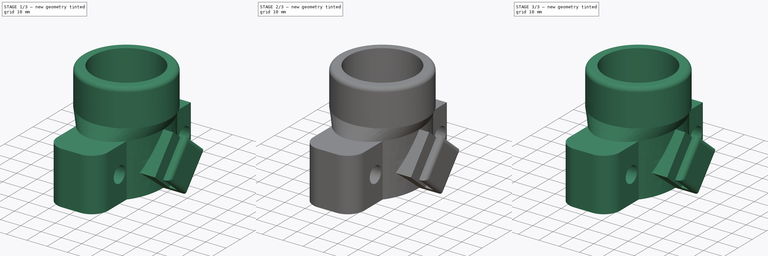
[diagram: build sequence overview — one tinted view per stage of 3, left to right]
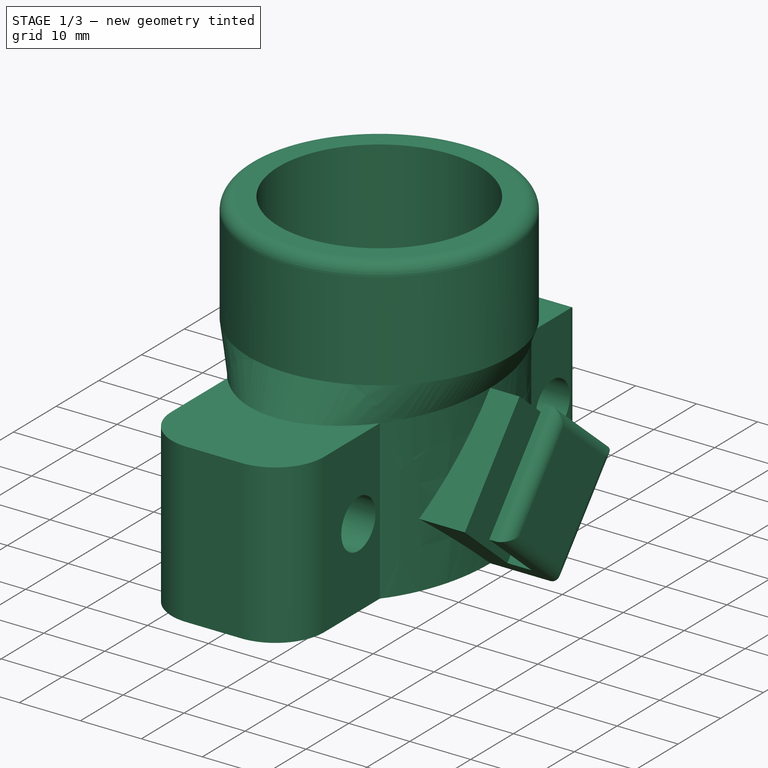
[diagram: stage 1 of 3 — iso view after this stage's code; geometry added in this stage tinted green]
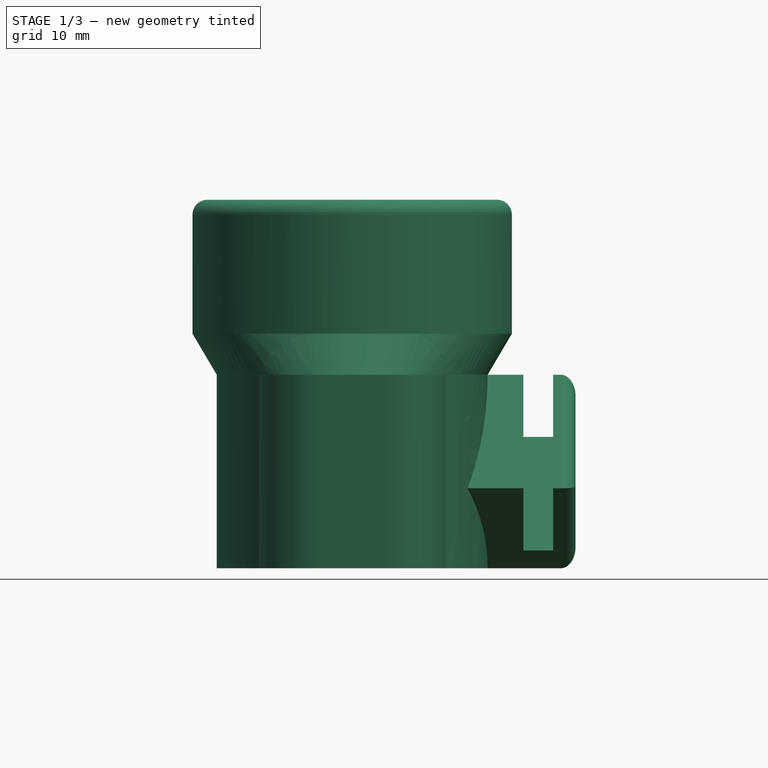
[diagram: stage 1 of 3 — front view after this stage's code; geometry added in this stage tinted green]
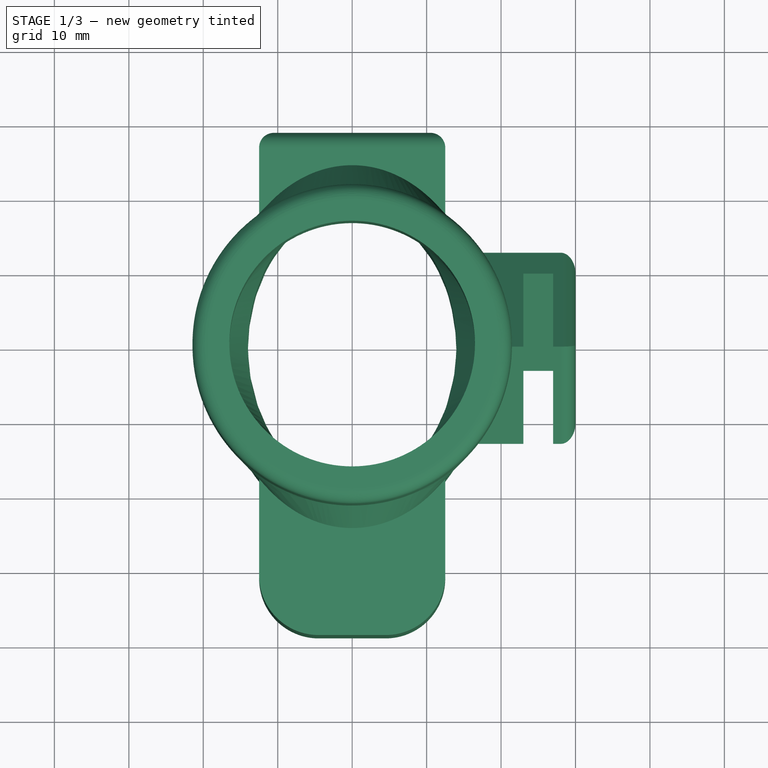
[diagram: stage 1 of 3 — top view after this stage's code; geometry added in this stage tinted green]
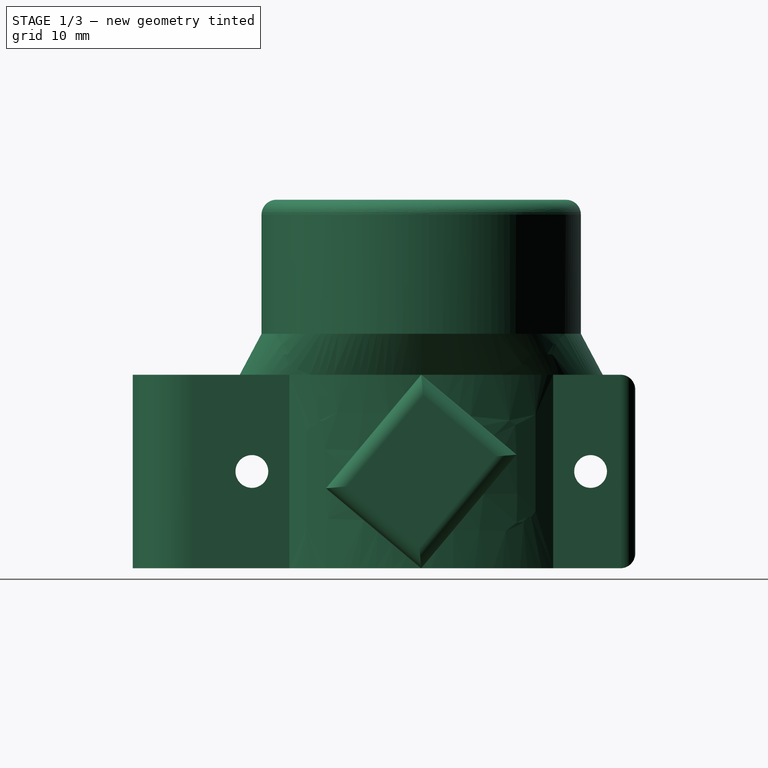
[diagram: stage 1 of 3 — right view after this stage's code; geometry added in this stage tinted green]
FCSTD DOCUMENT  (FreeCAD 0.18R16110 (Git))
Label: StrollerBagHolder
License: All rights reserved
LicenseURL: http://en.wikipedia.org/wiki/All_rights_reserved
objects: Sketcher::SketchObject×8, PartDesign::Pad×8, Part::FeaturePython×4, PartDesign::Plane×3, PartDesign::Body×3, PartDesign::FeatureBase×2, PartDesign::Pocket×2, PartDesign::Fillet×2, Spreadsheet::Sheet×1, PartDesign::AdditiveLoft×1, Part::Cut×1, PartDesign::Hole×1, App::DocumentObjectGroup×1
note: 47 computed .brp shape members not serialized (recipe doc carries the construction recipe); baked Part::Feature solids carry a one-line shape summary decoded from their .brp

FEATURE [Sketcher::SketchObject] Sketch
  MapMode = 5
  Support = -> [XY_Plane]
  expr: Constraints[7] = Spreadsheet.barWidth
  expr: Constraints[6] = Spreadsheet.barHeight
  sketch-geometry (5):
    g0: Ellipse CenterX=0 CenterY=0 CenterZ=0 NormalX=0 NormalY=0 NormalZ=1 MajorRadius=18.75 MinorRadius=14 AngleXU=-1.5708
    g1: LineSegment [constr] StartX=0 StartY=-18.75 StartZ=0 EndX=0 EndY=18.75 EndZ=0
    g2: LineSegment [constr] StartX=14 StartY=0 StartZ=0 EndX=-14 EndY=0 EndZ=0
    g3: GeomPoint X=0 Y=-12.4725 Z=0
    g4: GeomPoint X=0 Y=12.4725 Z=0
  constraints (5):
    c: InternalAlignment(g1-g4 -> g0) x4
    c: PointOnObject(g1,g-2)
    c: Coincident(g0,g-1)
    c: DistanceY(g1,g1) = 37.5
    c: DistanceX(g2,g2) = 28
FEATURE [Spreadsheet::Sheet] Spreadsheet
  cells = A1=Bar; A2=barHeight; B2(barHeight)=37.5; A3=barWidth; B3(barWidth)=28; A4=barDiam; B4(barDiam)=33; A5=barOvalLength; B5(barOvalLength)=26; A6=barLength; B6(barLength)=49.5; A7=barCirLength; B7(barCirLength)=18; A8=barScrewWidth; B8(barScrewWidth)=28.3; A9=barScrewDiam; B9(barScrewDiam)=10; A10=barMidLength; B10(barMidLength)==barLength - barCirLength - barOvalLength; A12=notchWidth; B12(notchWidth)=25; A13=notchHeight; B13(notchHeight)==barHeight + 2 * 10
FEATURE [PartDesign::Plane] DatumPlane
  AttachmentOffset = pos=(0,0,5.5) rot=(0,0,1;0rad)
  Length = 39.9735
  MapMode = 5
  Placement = pos=(0,0,5.5) rot=(0,0,1;0rad)
  ResizeMode = 0
  Support = -> [XY_Plane]
  Width = 44.4621
  expr: AttachmentOffset.Base.z = Spreadsheet.barMidLength
FEATURE [Sketcher::SketchObject] Sketch001
  MapMode = 5
  Placement = pos=(0,0,5.5) rot=(0,0,1;0rad)
  Support = -> [DatumPlane]
  expr: Constraints[1] = Spreadsheet.barDiam
  sketch-geometry (1):
    g0: Circle CenterX=0 CenterY=0 CenterZ=0 NormalX=0 NormalY=0 NormalZ=1 AngleXU=0 Radius=16.5
  constraints (2):
    c: Coincident(g0,g-1)
    c: Diameter(g0) = 33
FEATURE [PartDesign::AdditiveLoft] AdditiveLoft
  Closed = false
  Profile = -> Sketch
  Ruled = false
  Sections = -> [Sketch001]
FEATURE [PartDesign::Pad] Pad
  BaseFeature = -> AdditiveLoft
  Length = 26
  Length2 = 100
  Profile = -> AdditiveLoft [Face1]
  Type = 0
  expr: Length = Spreadsheet.barOvalLength
FEATURE [PartDesign::Pad] Pad001
  BaseFeature = -> Pad
  Length = 18
  Length2 = 100
  Profile = -> Pad [Face4]
  Type = 0
  expr: Length = Spreadsheet.barCirLength
FEATURE [Part::FeaturePython] Scale  # Draft clone (typed FeaturePython)
  Fuse = false
  Objects = -> [Pad001]
  Scale = (1.3,1.3,1)
FEATURE [PartDesign::FeatureBase] BaseFeature
  BaseFeature = -> Scale
FEATURE [Sketcher::SketchObject] Sketch002
  MapMode = 5
  Support = -> [XY_Plane002]
  expr: Constraints[8] = Spreadsheet.notchHeight
  expr: Constraints[7] = Spreadsheet.notchWidth
  sketch-geometry (4):
    g0: LineSegment StartX=-12.5 StartY=28.75 StartZ=0 EndX=12.5 EndY=28.75 EndZ=0
    g1: LineSegment StartX=12.5 StartY=28.75 StartZ=0 EndX=12.5 EndY=-28.75 EndZ=0
    g2: LineSegment StartX=12.5 StartY=-28.75 StartZ=0 EndX=-12.5 EndY=-28.75 EndZ=0
    g3: LineSegment StartX=-12.5 StartY=-28.75 StartZ=0 EndX=-12.5 EndY=28.75 EndZ=0
  constraints (11):
    c: Coincident(g0,g1)
    c: Coincident(g1,g2)
    c: Coincident(g2,g3)
    c: Coincident(g3,g0)
    c: Horizontal(g2)
    c: Vertical(g1)
    c: Vertical(g3)
    c: DistanceX(g0,g0) = 25
    c: DistanceY(g3,g3) = 57.5
    c: Horizontal(g0)
    c: Symmetric(g2,g0,g-1)
FEATURE [PartDesign::Pad] Pad002
  BaseFeature = -> BaseFeature
  Length = 26
  Length2 = 100
  Profile = -> Sketch002
  Reversed = true
  Type = 0
  expr: Length = Spreadsheet.barOvalLength
FEATURE [PartDesign::Pad] Pad003
  BaseFeature = -> Pad001
  Length = 10
  Length2 = 100
  Profile = -> Pad001 [Face8]
  Type = 0
FEATURE [PartDesign::Pad] Pad004
  BaseFeature = -> Pad003
  Length = 10
  Length2 = 100
  Profile = -> Pad003 [Face6]
  Type = 0
FEATURE [Sketcher::SketchObject] Sketch005
  MapMode = 5
  Placement = pos=(0,0,0) rot=(0.57735,0.57735,0.57735;2.0944rad)
  Support = -> [YZ_Plane]
  expr: Constraints[2] = Spreadsheet.barOvalLength - 15
  sketch-geometry (1):
    g0: Circle CenterX=0 CenterY=-11 CenterZ=0 NormalX=0 NormalY=0 NormalZ=1 AngleXU=0 Radius=5
  constraints (3):
    c: PointOnObject(g0,g-2)
    c: Diameter(g0) = 10
    c: DistanceY(g0,g-1) = 11
FEATURE [PartDesign::Pad] Pad005
  BaseFeature = -> Pad004
  Length = 30
  Length2 = 100
  Midplane = true
  Profile = -> Sketch005
  Type = 0
  expr: Length = Spreadsheet.barWidth + 2
FEATURE [PartDesign::Body] Body  label="strollerHandle"
  Group = -> [Sketch,DatumPlane,Sketch001,AdditiveLoft,Pad,Pad001,Pad003,Pad004,Sketch005,Pad005]
  Origin = -> Origin
  Tip = -> Pad005
FEATURE [PartDesign::Plane] DatumPlane001
  Length = 24
  MapMode = 5
  Placement = pos=(0,0,0) rot=(0.57735,0.57735,0.57735;2.0944rad)
  ResizeMode = 0
  Support = -> [YZ_Plane003]
  Width = 24
FEATURE [PartDesign::Plane] DatumPlane003
  Length = 68.1701
  MapMode = 5
  Placement = pos=(0,0,0) rot=(0.57735,0.57735,0.57735;2.0944rad)
  ResizeMode = 0
  Support = -> [YZ_Plane002]
  Width = 60.1701
FEATURE [Sketcher::SketchObject] Sketch008
  MapMode = 5
  Placement = pos=(0,0,0) rot=(0.57735,0.57735,0.57735;2.0944rad)
  expr: Constraints[10] = Spreadsheet.barOvalLength
  sketch-geometry (4):
    g0: LineSegment StartX=-12.8025 StartY=-15.2574 StartZ=0 EndX=-1.8e-15 EndY=0 EndZ=0
    g1: LineSegment StartX=-1.8e-15 StartY=0 StartZ=0 EndX=12.8025 EndY=-10.7426 EndZ=0
    g2: LineSegment StartX=12.8025 StartY=-10.7426 StartZ=0 EndX=0 EndY=-26 EndZ=0
    g3: LineSegment StartX=0 StartY=-26 StartZ=0 EndX=-12.8025 EndY=-15.2574 EndZ=0
  constraints (11):
    c: Coincident(g1,g0)
    c: Coincident(g1,g2)
    c: Coincident(g2,g3)
    c: Coincident(g3,g0)
    c: Perpendicular(g0,g3)
    c: Perpendicular(g1,g2)
    c: Perpendicular(g1,g0)
    c: Angle(g0,g-2) = 0.698132
    c: Coincident(g0,g-1)
    c: PointOnObject(g2,g-2)
    c: DistanceY(g2,g0) = 26
FEATURE [PartDesign::Pad] Pad007
  BaseFeature = -> Pad002
  Length = 30
  Length2 = 100
  Profile = -> Sketch008
  Type = 0
FEATURE [Sketcher::SketchObject] Sketch009
  MapMode = 5
  Placement = pos=(0,-1.4e-15,1.1e-15) rot=(1,0,0;0.872665rad)
  Support = -> [Pad007]
  sketch-geometry (4):
    g0: LineSegment StartX=23 StartY=0 StartZ=0 EndX=27 EndY=0 EndZ=0
    g1: LineSegment StartX=27 StartY=0 StartZ=0 EndX=27 EndY=-20 EndZ=0
    g2: LineSegment StartX=27 StartY=-20 StartZ=0 EndX=23 EndY=-20 EndZ=0
    g3: LineSegment StartX=23 StartY=-20 StartZ=0 EndX=23 EndY=0 EndZ=0
  constraints (12):
    c: Coincident(g0,g1)
    c: Coincident(g1,g2)
    c: Coincident(g2,g3)
    c: Coincident(g3,g0)
    c: Horizontal(g0)
    c: Horizontal(g2)
    c: Vertical(g1)
    c: Vertical(g3)
    c: PointOnObject(g0,g-1)
    c: DistanceX(g-1,g0) = 23
    c: DistanceX(g0,g0) = 4
    c: DistanceY(g1,g1) = 20
FEATURE [PartDesign::Pocket] Pocket001
  BaseFeature = -> Pad007
  Length = 13
  Length2 = 100
  Profile = -> Sketch009
  Type = 0
FEATURE [PartDesign::Body] Body001
  BaseFeature = -> Scale
  Group = -> [BaseFeature,Sketch002,Pad002,DatumPlane003,Sketch008,Pad007,Sketch009,Pocket001]
  Origin = -> Origin002
  Tip = -> Pocket001
FEATURE [Part::Cut] Cut
  Base = -> Body001
  Tool = -> Body
FEATURE [PartDesign::FeatureBase] BaseFeature001
  BaseFeature = -> Cut
FEATURE [PartDesign::Body] Body002
  BaseFeature = -> Cut
  Group = -> [BaseFeature001,Sketch003,Hole,Sketch004,Pocket,DatumPlane001,Pad006,Fillet,Fillet001]
  Origin = -> Origin003
  Tip = -> Fillet001
FEATURE [Sketcher::SketchObject] Sketch003
  MapMode = 5
  Placement = pos=(12.5,0,0) rot=(0.57735,0.57735,0.57735;2.0944rad)
  Support = -> [Pad006]
  expr: Constraints.holeDist = Spreadsheet.notchHeight / 2 - 6
  expr: Constraints[0] = Spreadsheet.barOvalLength / 2
  sketch-geometry (2):
    g0: Circle CenterX=-22.75 CenterY=-13 CenterZ=0 NormalX=0 NormalY=0 NormalZ=1 AngleXU=0 Radius=1.5
    g1: Circle CenterX=22.75 CenterY=-13 CenterZ=0 NormalX=0 NormalY=0 NormalZ=1 AngleXU=0 Radius=1.5
  constraints (5):
    c: DistanceY(g0,g-1) = 13
    c: Symmetric(g1,g0,g-2)
    c: DistanceX(g0,g-1) = 22.75  'holeDist'
    c: Equal(g0,g1)
    c: Diameter(g0) = 3
FEATURE [PartDesign::Hole] Hole
  BaseFeature = -> BaseFeature001
  Depth = 25
  DepthType = 1
  Diameter = 4.4
  DrillPoint = 0
  DrillPointAngle = 118
  HoleCutCountersinkAngle = 90
  HoleCutDepth = 5
  HoleCutDiameter = 8
  HoleCutType = 1
  ModelActualThread = false
  Profile = -> Sketch003
  Tapered = false
  TaperedAngle = 90
  ThreadAngle = 60
  ThreadClass = 0
  ThreadCutOffInner = 0.0757772
  ThreadCutOffOuter = 0.151554
  ThreadDirection = 0
  ThreadFit = 0
  ThreadPitch = 0.7
  ThreadSize = 0
  ThreadType = 0
  Threaded = false
  expr: Depth = Spreadsheet.notchWidth
FEATURE [Sketcher::SketchObject] Sketch004
  MapMode = 5
  Placement = pos=(-12.5,0,0) rot=(0.57735,-0.57735,-0.57735;2.0944rad)
  Support = -> [Hole]
  expr: Constraints[35] = Spreadsheet.notchHeight / 2 - 6
  expr: Constraints[37] = Spreadsheet.barOvalLength / 2
  sketch-geometry (14):
    g0: LineSegment StartX=-22.75 StartY=-17.1569 StartZ=0 EndX=-19.15 EndY=-15.0785 EndZ=0
    g1: LineSegment StartX=-19.15 StartY=-15.0785 StartZ=0 EndX=-19.15 EndY=-10.9215 EndZ=0
    g2: LineSegment StartX=-19.15 StartY=-10.9215 StartZ=0 EndX=-22.75 EndY=-8.84308 EndZ=0
    g3: LineSegment StartX=-22.75 StartY=-8.84308 StartZ=0 EndX=-26.35 EndY=-10.9215 EndZ=0
    g4: LineSegment StartX=-26.35 StartY=-10.9215 StartZ=0 EndX=-26.35 EndY=-15.0785 EndZ=0
    g5: LineSegment StartX=-26.35 StartY=-15.0785 StartZ=0 EndX=-22.75 EndY=-17.1569 EndZ=0
    g6: Circle [constr] CenterX=-22.75 CenterY=-13 CenterZ=0 NormalX=0 NormalY=0 NormalZ=1 AngleXU=0 Radius=4.15692
    g7: LineSegment StartX=26.35 StartY=-15.0785 StartZ=0 EndX=26.35 EndY=-10.9215 EndZ=0
    g8: LineSegment StartX=26.35 StartY=-10.9215 StartZ=0 EndX=22.75 EndY=-8.84308 EndZ=0
    g9: LineSegment StartX=22.75 StartY=-8.84308 StartZ=0 EndX=19.15 EndY=-10.9215 EndZ=0
    g10: LineSegment StartX=19.15 StartY=-10.9215 StartZ=0 EndX=19.15 EndY=-15.0785 EndZ=0
    g11: LineSegment StartX=19.15 StartY=-15.0785 StartZ=0 EndX=22.75 EndY=-17.1569 EndZ=0
    g12: LineSegment StartX=22.75 StartY=-17.1569 StartZ=0 EndX=26.35 EndY=-15.0785 EndZ=0
    g13: Circle [constr] CenterX=22.75 CenterY=-13 CenterZ=0 NormalX=0 NormalY=0 NormalZ=1 AngleXU=0 Radius=4.15692
  constraints (33):
    c: Coincident(g0,g1)
    c: Coincident(g1,g2)
    c: Coincident(g2,g3)
    c: Coincident(g3,g4)
    c: Coincident(g4,g5)
    c: Coincident(g5,g0)
    c: Equal(g0, g1-g5) x5
    c: PointOnObject(g0,g6)
    c: PointOnObject(g1,g6)
    c: PointOnObject(g2,g6)
    c: PointOnObject(g3,g6)
    c: PointOnObject(g4,g6)
    c: PointOnObject(g5,g6)
    c: Coincident(g7,g8)
    c: Coincident(g8,g9)
    c: Coincident(g9,g10)
    c: Coincident(g10,g11)
    c: Coincident(g11,g12)
    c: Coincident(g12,g7)
    c: Equal(g7, g8-g12) x5
    c: PointOnObject(g7,g13)
    c: PointOnObject(g8,g13)
    c: PointOnObject(g9,g13)
    c: PointOnObject(g10,g13)
    c: PointOnObject(g11,g13)
    c: PointOnObject(g12,g13)
    c: Equal(g13,g6)
    c: DistanceX(g6,g-1) = 22.75
    c: Symmetric(g6,g13,g-2)
    c: DistanceY(g6,g-1) = 13
    c: Vertical(g2,g0)
    c: Vertical(g8,g11)
    c: DistanceX(g3,g1) = 7.2
FEATURE [PartDesign::Pocket] Pocket
  BaseFeature = -> Hole
  Length = 5
  Length2 = 100
  Profile = -> Sketch004
  Type = 0
FEATURE [PartDesign::Pad] Pad006
  BaseFeature = -> Pocket
  Length = 10
  Length2 = 100
  Profile = -> Pocket [Face7]
  Type = 0
FEATURE [PartDesign::Fillet] Fillet
  Base = -> Pad006 [Edge61,Edge78]
  BaseFeature = -> Pad006
  Radius = 8
FEATURE [PartDesign::Fillet] Fillet001
  Base = -> Fillet [Edge65,Face45,Face40]
  BaseFeature = -> Fillet
  Radius = 2
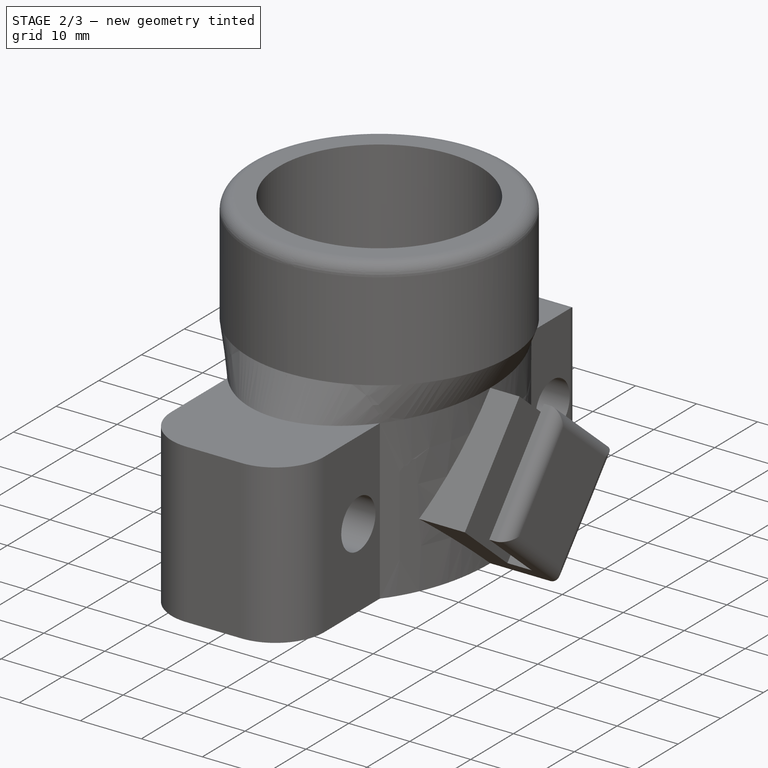
[diagram: stage 2 of 3 — iso view after this stage's code; geometry added in this stage tinted green]
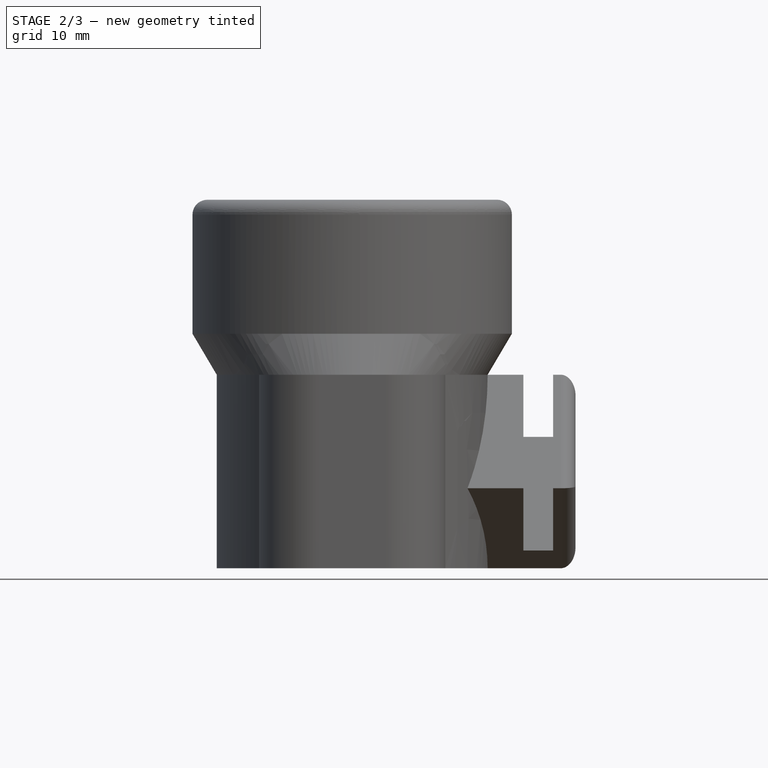
[diagram: stage 2 of 3 — front view after this stage's code; geometry added in this stage tinted green]
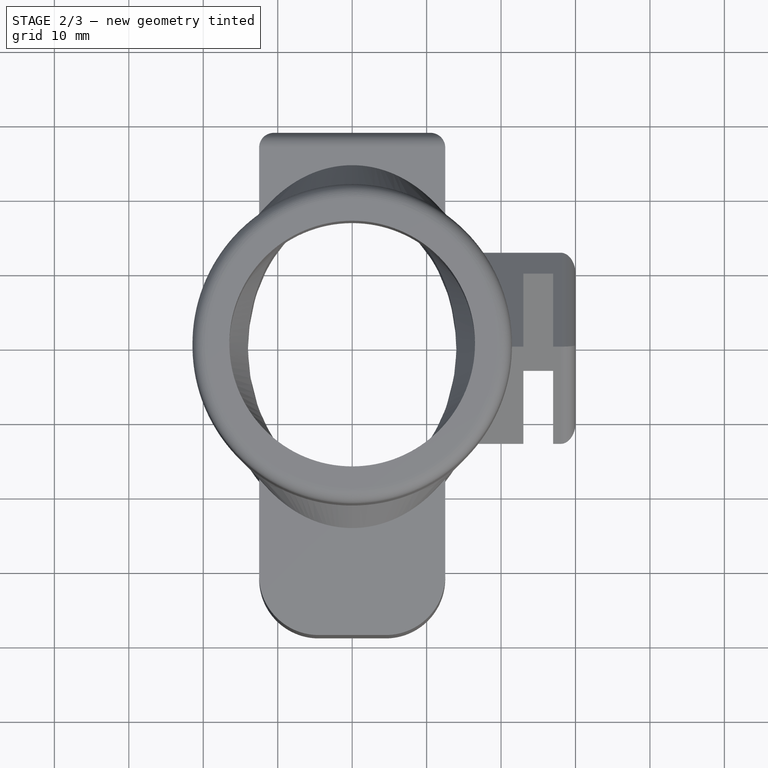
[diagram: stage 2 of 3 — top view after this stage's code; geometry added in this stage tinted green]
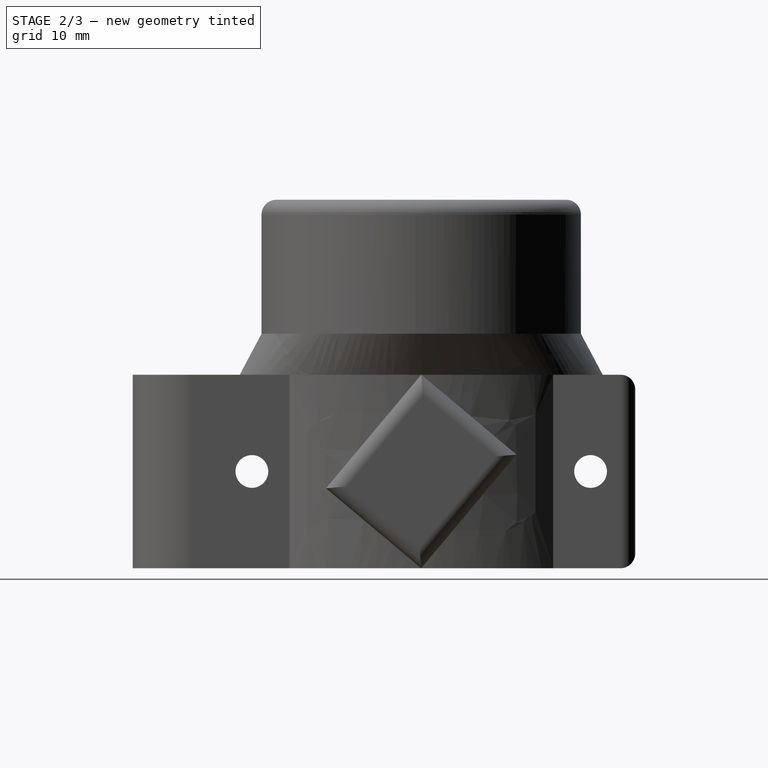
[diagram: stage 2 of 3 — right view after this stage's code; geometry added in this stage tinted green]
FEATURE [Part::FeaturePython] Slice  # WARN: FeaturePython — macro-defined, semantics opaque (R4)
  Base = -> Body002
  Mode = 1
  Tolerance = 0
  Tools = -> [DatumPlane001]
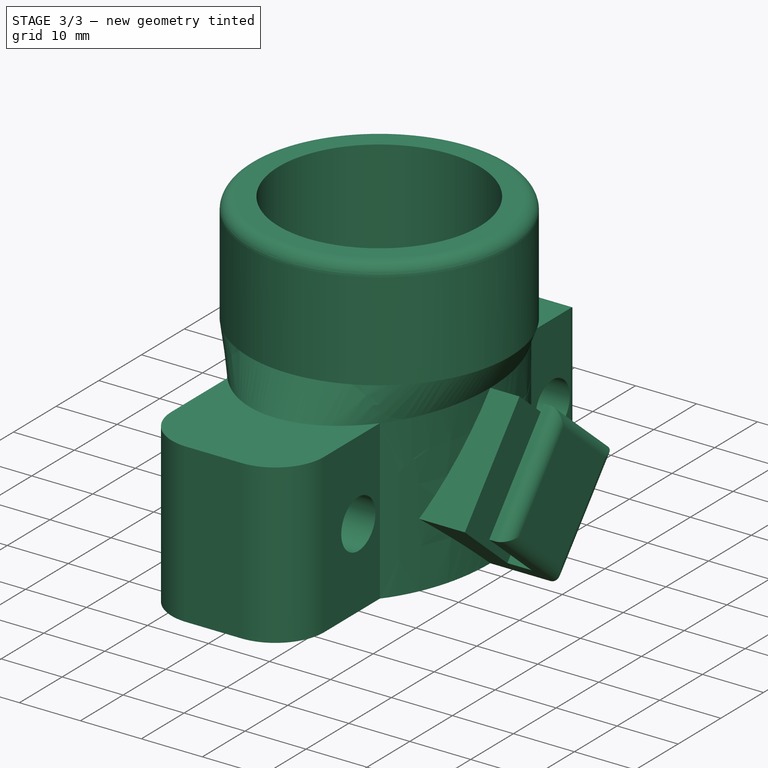
[diagram: stage 3 of 3 — iso view after this stage's code; geometry added in this stage tinted green]
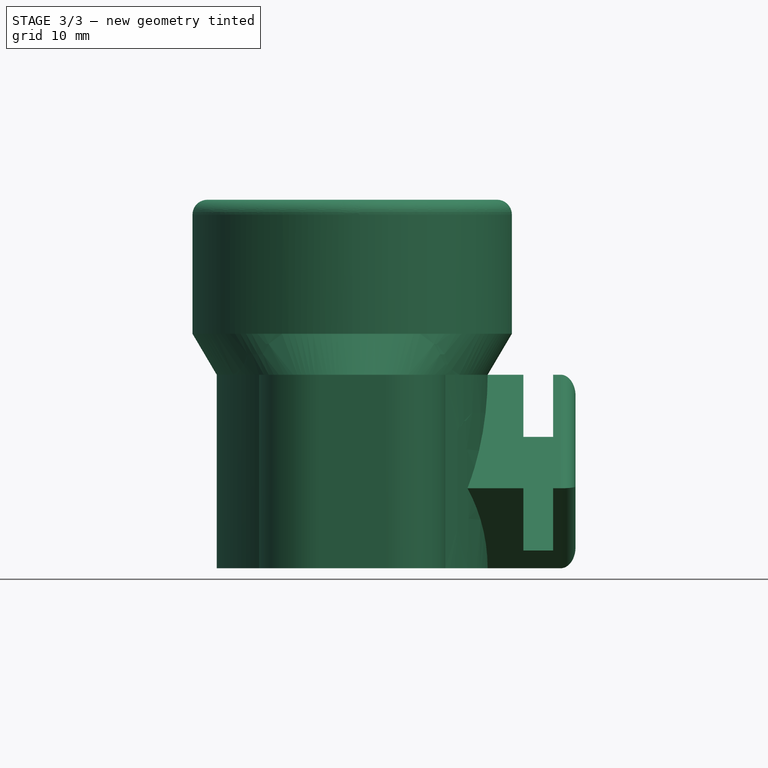
[diagram: stage 3 of 3 — front view after this stage's code; geometry added in this stage tinted green]
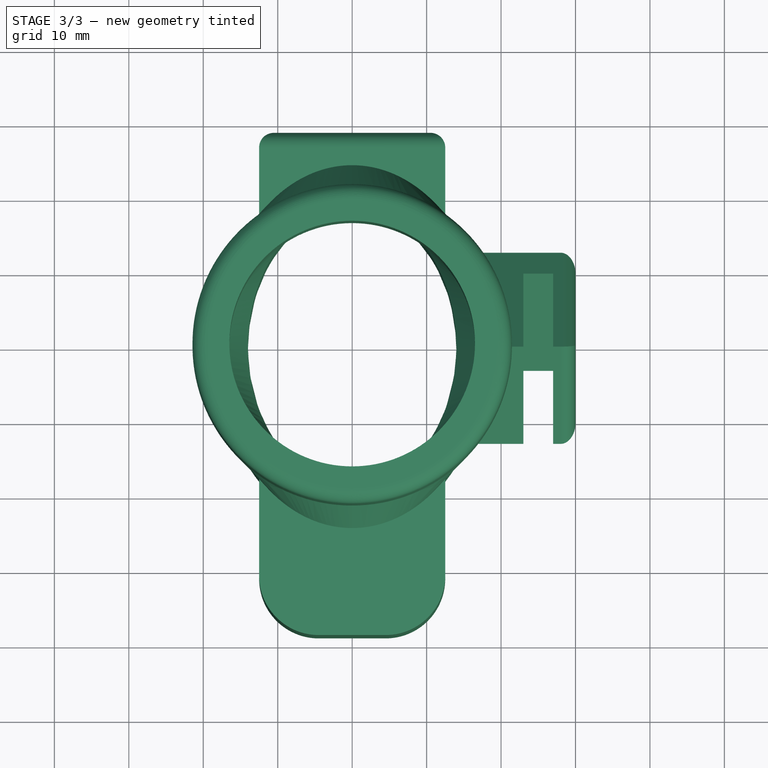
[diagram: stage 3 of 3 — top view after this stage's code; geometry added in this stage tinted green]
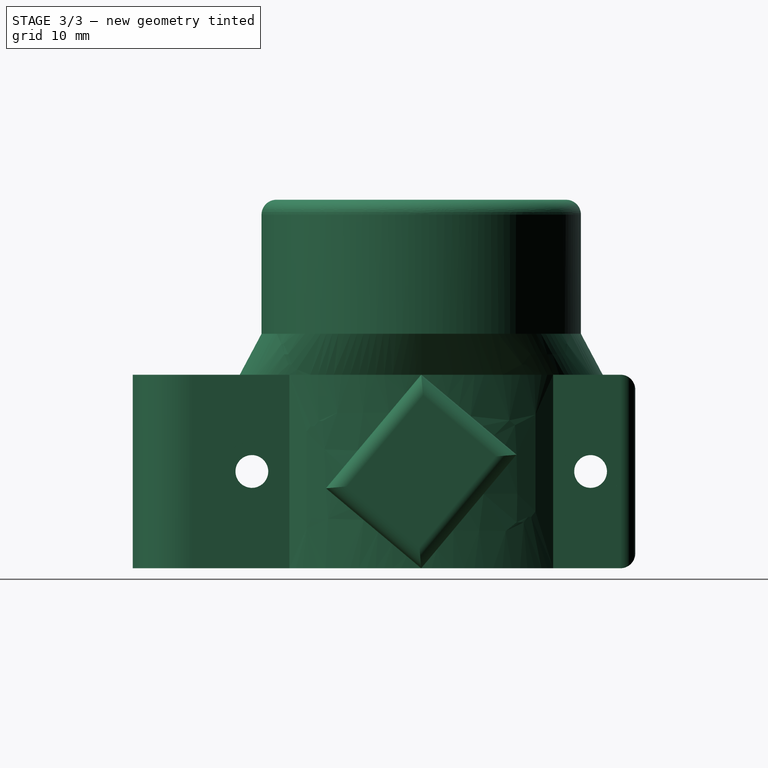
[diagram: stage 3 of 3 — right view after this stage's code; geometry added in this stage tinted green]
FEATURE [App::DocumentObjectGroup] GrExplode_Slice  label="Exploded Slice"
  Group = -> [Slice_child0,Slice_child1]
FEATURE [Part::FeaturePython] Slice_child0  label="Slice.0"  # WARN: FeaturePython — macro-defined, semantics opaque (R4)
  Base = -> Slice
  FilterType = 1
  Invert = false
  OverrideMaxVal = 0
  WindowFrom = 80
  WindowTo = 100
  items = 0
FEATURE [Part::FeaturePython] Slice_child1  label="Slice.1"  # WARN: FeaturePython — macro-defined, semantics opaque (R4)
  Base = -> Slice
  FilterType = 1
  Invert = false
  OverrideMaxVal = 0
  WindowFrom = 80
  WindowTo = 100
  items = 1
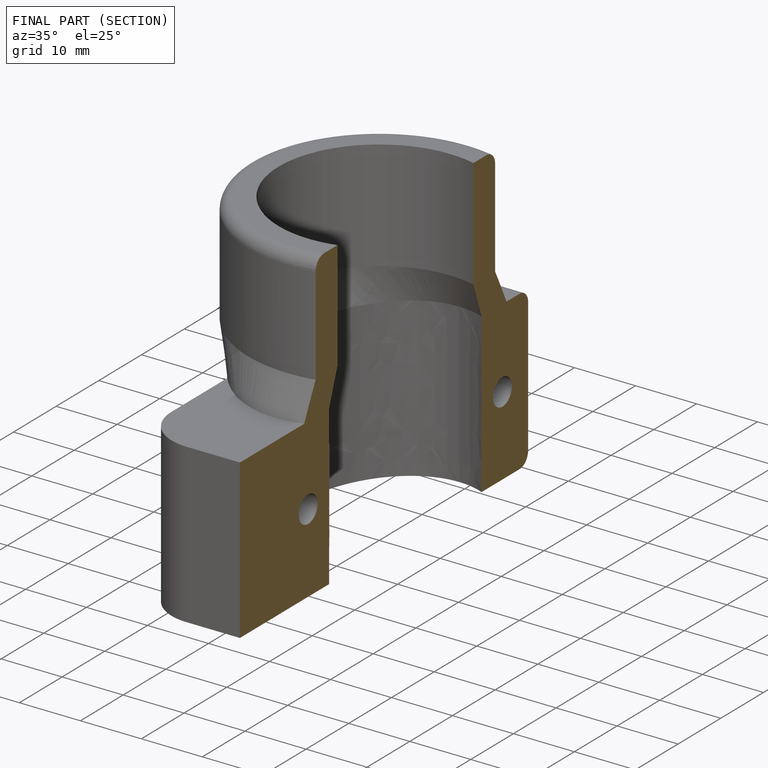
[diagram: finished part — half-section view (interior)]
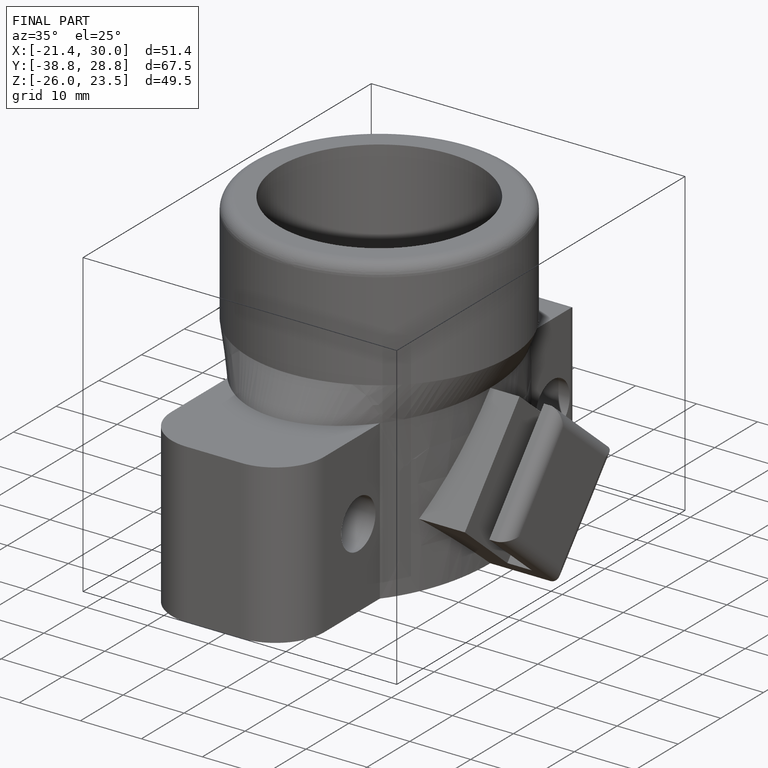
[diagram: finished part — iso view with bounding-box wireframe]
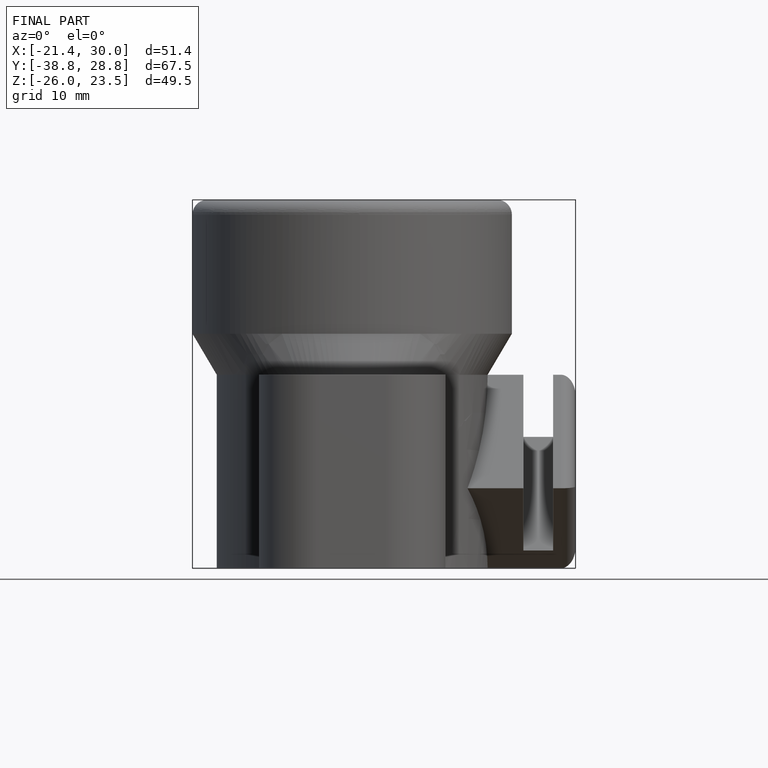
[diagram: finished part — front view with bounding-box wireframe]
